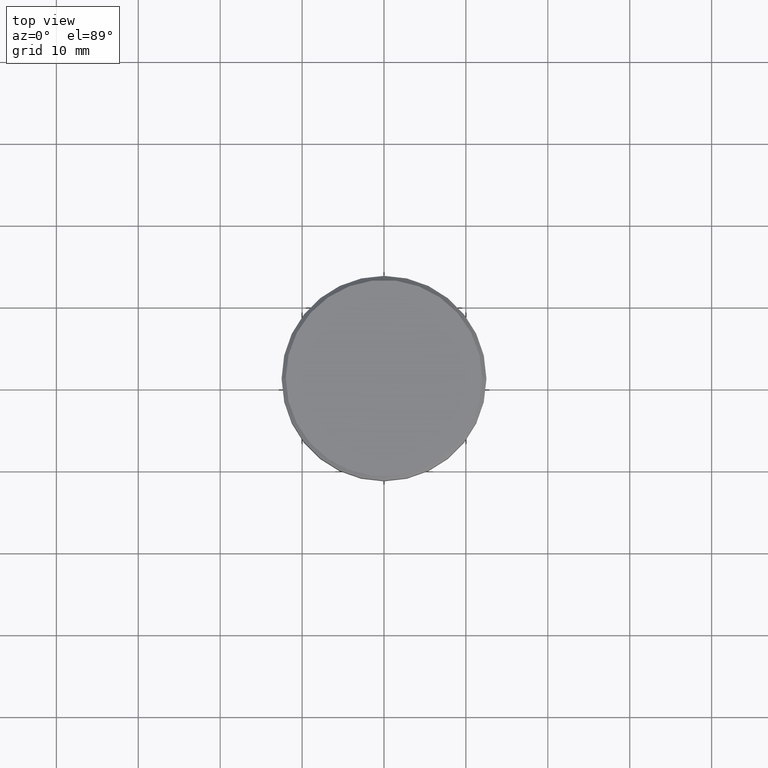
[diagram: clean part render]
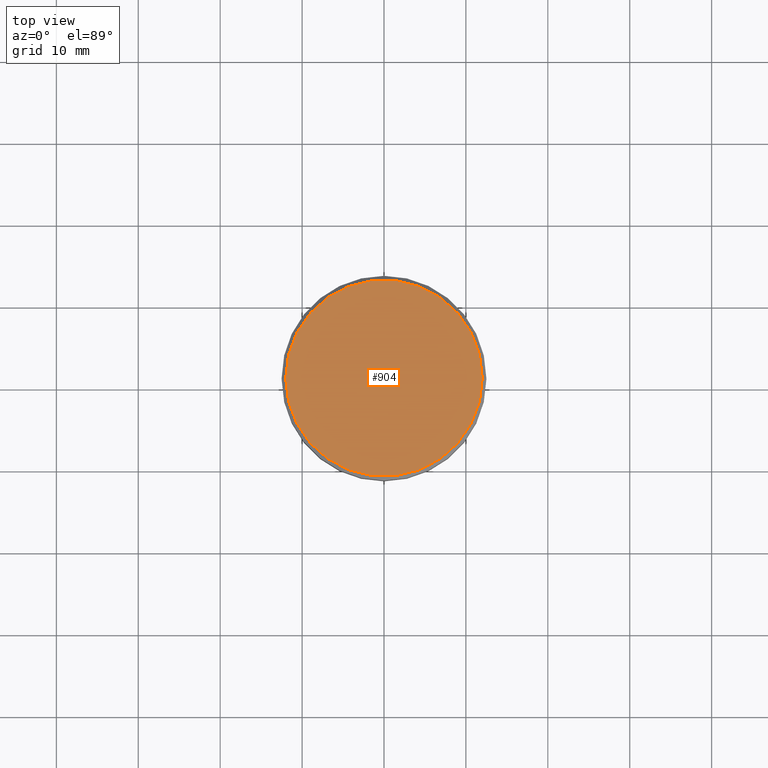
[diagram: same view with one face highlighted and labeled with its STEP entity id]
A machine part, top view. The second image highlights one B-rep face of the part: STEP entity #904.
In plain terms, the highlighted planar face has unit normal (0, -0, 1).
Its self-contained STEP definition (entity closure, byte-faithful):
#10 = CARTESIAN_POINT ( 'NONE',  ( 0.000000000000000000, 0.000000000000000000, 0.000000000000000000 ) ) ;
#155 = DIRECTION ( 'NONE',  ( -0.000000000000000000, -0.000000000000000000, 1.000000000000000000 ) ) ;
#178 = DIRECTION ( 'NONE',  ( 1.000000000000000000, 0.000000000000000000, 0.000000000000000000 ) ) ;
#191 = DIRECTION ( 'NONE',  ( 1.000000000000000000, 0.000000000000000000, 0.000000000000000000 ) ) ;
#229 = AXIS2_PLACEMENT_3D ( 'NONE', #10, #733, #1107 ) ;
#277 = CIRCLE ( 'NONE', #433, 12.00000000000001066 ) ;
#278 = CARTESIAN_POINT ( 'NONE',  ( -12.00000000000001066, 0.000000000000000000, 0.000000000000000000 ) ) ;
#295 = EDGE_CURVE ( 'NONE', #734, #927, #277, .T. ) ;
#318 = ORIENTED_EDGE ( 'NONE', *, *, #295, .T. ) ;
#371 = PLANE ( 'NONE',  #229 ) ;
#433 = AXIS2_PLACEMENT_3D ( 'NONE', #1000, #155, #178 ) ;
#461 = FACE_OUTER_BOUND ( 'NONE', #612, .T. ) ;
#612 = EDGE_LOOP ( 'NONE', ( #1036, #318 ) ) ;
#624 = CIRCLE ( 'NONE', #771, 12.00000000000001066 ) ;
#733 = DIRECTION ( 'NONE',  ( 0.000000000000000000, -0.000000000000000000, 1.000000000000000000 ) ) ;
#734 = VERTEX_POINT ( 'NONE', #1119 ) ;
#771 = AXIS2_PLACEMENT_3D ( 'NONE', #1116, #937, #191 ) ;
#776 = EDGE_CURVE ( 'NONE', #927, #734, #624, .T. ) ;
#904 = ADVANCED_FACE ( 'NONE', ( #461 ), #371, .T. ) ;
#927 = VERTEX_POINT ( 'NONE', #278 ) ;
#937 = DIRECTION ( 'NONE',  ( -0.000000000000000000, -0.000000000000000000, 1.000000000000000000 ) ) ;
#1000 = CARTESIAN_POINT ( 'NONE',  ( 0.000000000000000000, 0.000000000000000000, 0.000000000000000000 ) ) ;
#1036 = ORIENTED_EDGE ( 'NONE', *, *, #776, .T. ) ;
#1107 = DIRECTION ( 'NONE',  ( 1.000000000000000000, 0.000000000000000000, 0.000000000000000000 ) ) ;
#1116 = CARTESIAN_POINT ( 'NONE',  ( 0.000000000000000000, 0.000000000000000000, 0.000000000000000000 ) ) ;
#1119 = CARTESIAN_POINT ( 'NONE',  ( 12.00000000000001066, 1.500192328955508326E-15, 0.000000000000000000 ) ) ;